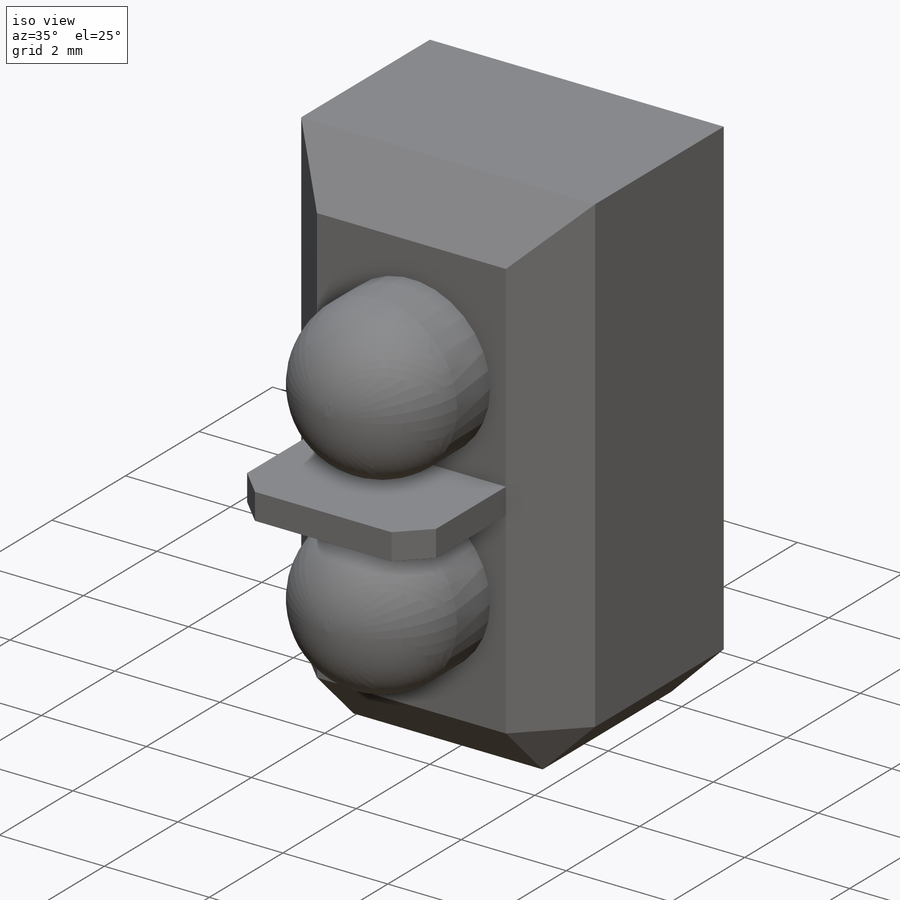
[diagram: iso view]
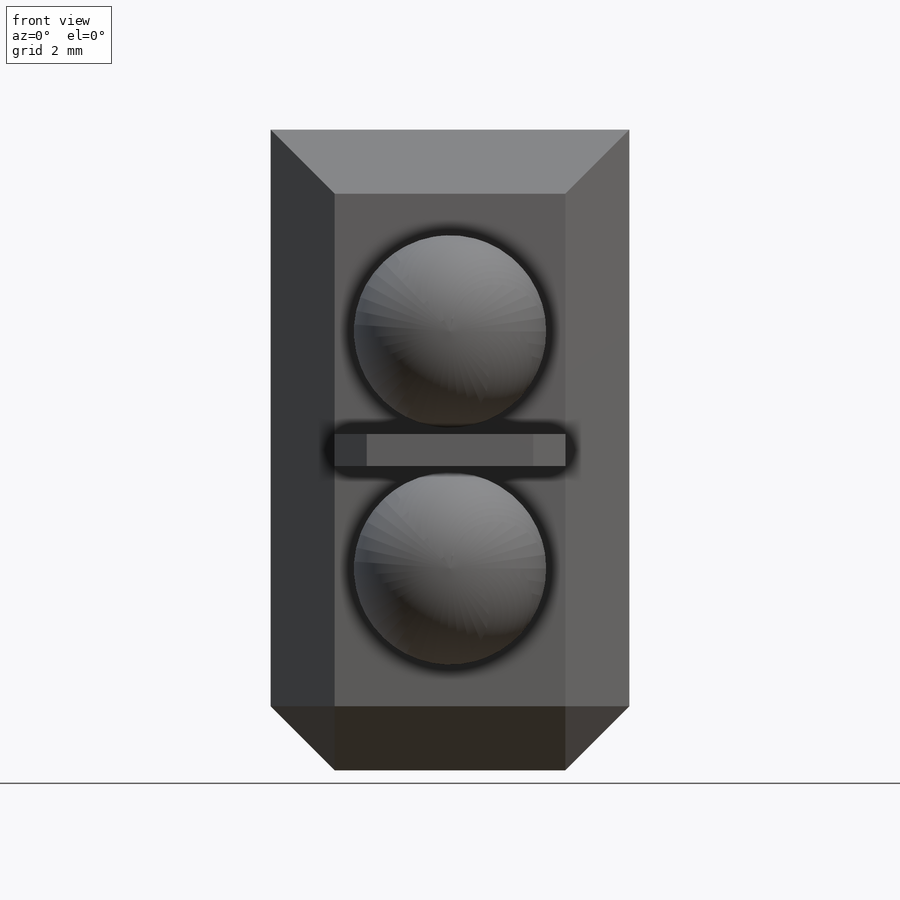
[diagram: front view]
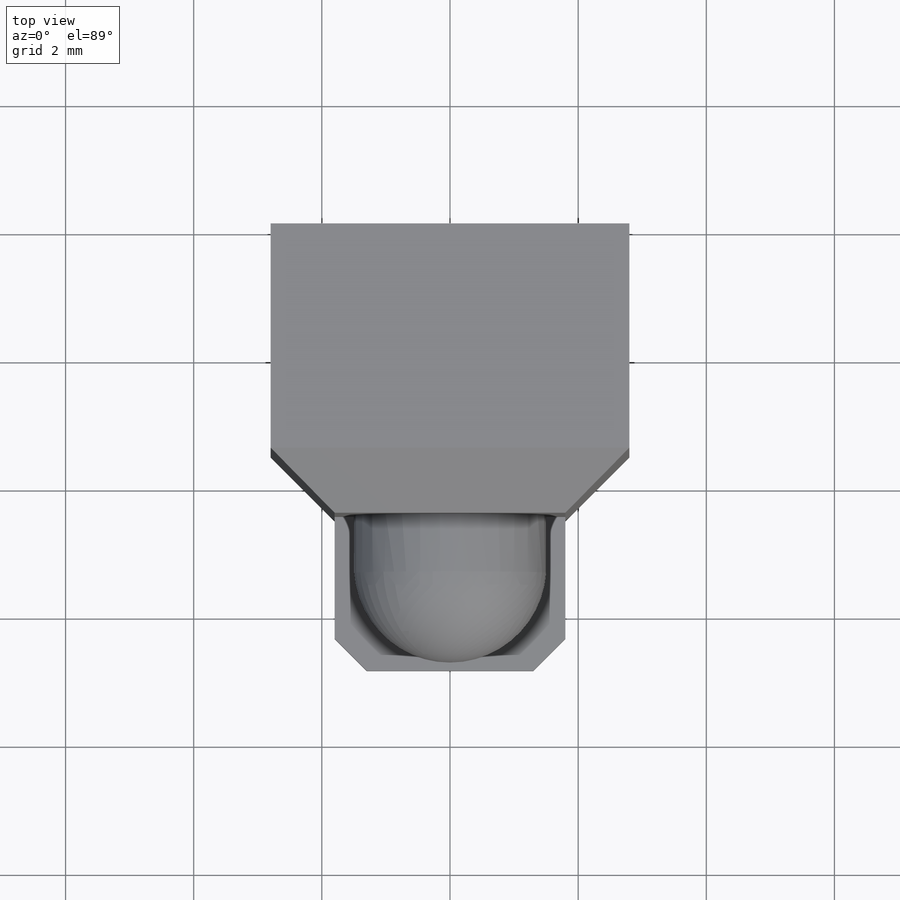
[diagram: top view]
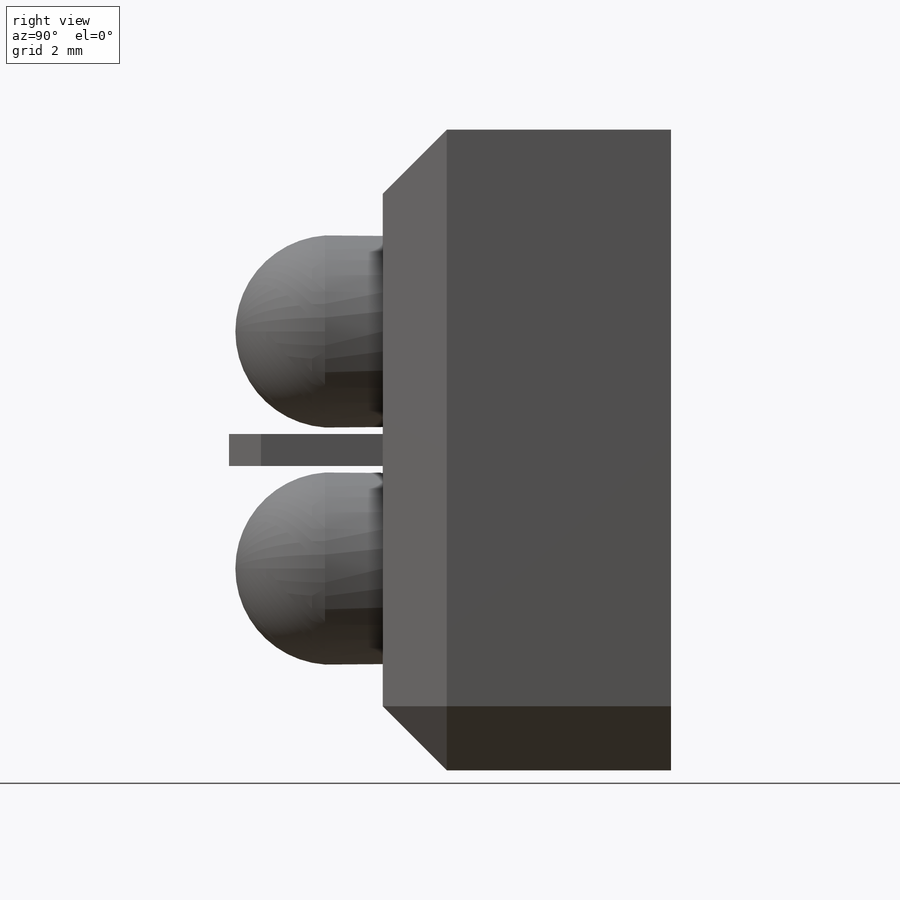
[diagram: right view]
SOLIDWORKS PART (.sldprt)
format: sldprt  version: not decoded by parser v0  size: 228,864 bytes
history: native  units: mm
features: sketch x3, extrude x3, chamfer x2, dome x2, material x1 (+16 scaffold rows collapsed)
feature tree (27):
  scaffold x16  (default folders/planes/origin — collapsed)
  material  "Material <not specified>"
  sketch  "Sketch1"  dims[D1=10.0mm D2=5.6mm]
  extrude  "Boss-Extrude1"  Depth=4.5mm
  chamfer  "Chamfer1"  Distance=1mm Angle=45deg
  sketch  "Sketch2"  dims[D2=3.0mm D3=3.0mm D1=3.7mm]
  extrude  "Boss-Extrude2"  Depth=0.9mm
  dome  "Dome1"
  dome  "Dome2"
  sketch  "Sketch3"  dims[D1=0.5mm]
  extrude  "Boss-Extrude3"  Depth=2.4mm
  chamfer  "Chamfer2"  Distance=0.5mm Angle=45deg
decode coverage: 8 of 10 modeling features carry decoded parameters
note: suppression state not decoded; provenance and decode notes live in map.json
